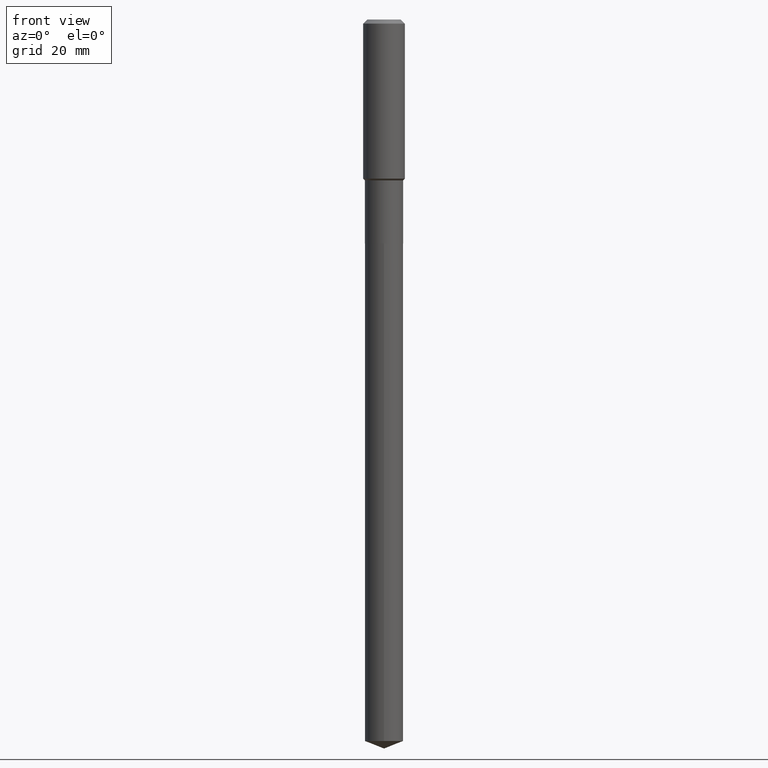
[diagram: clean part render]
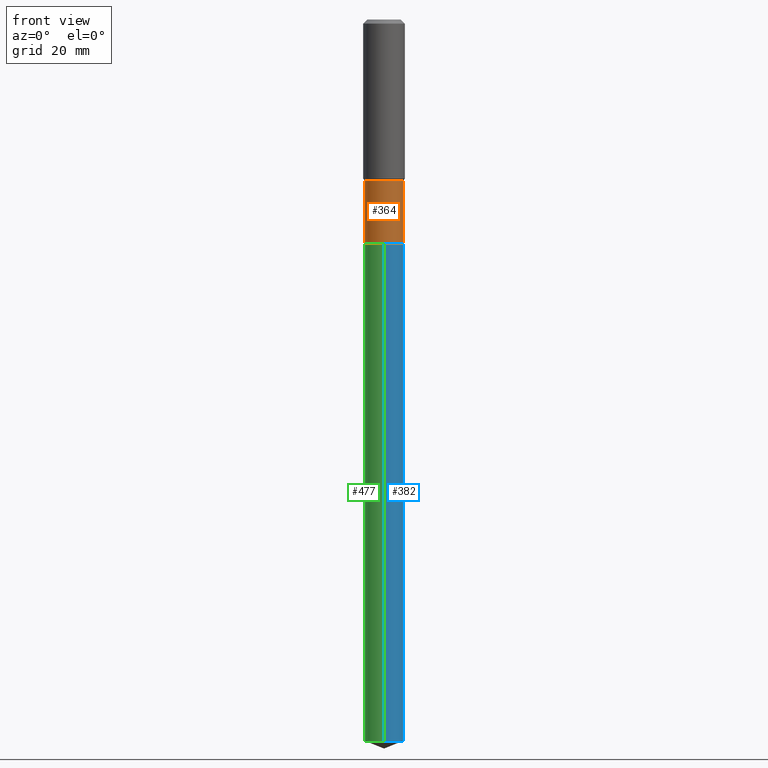
[diagram: same view with three faces highlighted in distinct colors, each labeled with its STEP entity id]
A machine part, front view with three faces highlighted in distinct colors.
Their STEP definitions:

[orange] entity #364 — the highlighted cylindrical surface (edge-blend (fillet) strip) has radius 5.5004 mm, axis along (-0, 0, 1).
#7 = EDGE_CURVE ( 'NONE', #210, #172, #140, .T. ) ;
#16 = CARTESIAN_POINT ( 'NONE',  ( 4.462980571287875634E-29, -6.371953443388742039E-15, -1.825000000000000400 ) ) ;
#40 = CARTESIAN_POINT ( 'NONE',  ( 0.2165500000000000203, -1.037772998344347638E-14, -2.539200000000000124 ) ) ;
#45 = CARTESIAN_POINT ( 'NONE',  ( 0.000000000000000000, 0.000000000000000000, 0.000000000000000000 ) ) ;
#64 = DIRECTION ( 'NONE',  ( -2.445468806185136597E-29, 3.491481338843145583E-15, 1.000000000000000000 ) ) ;
#70 = CARTESIAN_POINT ( 'NONE',  ( 0.2165499999999999647, -1.512160567852960823E-15, 1.055936080798609895E-29 ) ) ;
#106 = CIRCLE ( 'NONE', #388, 0.2165500000000000203 ) ;
#117 = CYLINDRICAL_SURFACE ( 'NONE', #244, 0.2165499999999999647 ) ;
#120 = DIRECTION ( 'NONE',  ( 1.000000000000000000, -6.982962677686266711E-15, 4.876176775795936353E-29 ) ) ;
#124 = CARTESIAN_POINT ( 'NONE',  ( -0.2165499999999999647, 1.538680294288496702E-15, -1.065195393794699783E-29 ) ) ;
#140 = LINE ( 'NONE', #70, #456 ) ;
#152 = DIRECTION ( 'NONE',  ( -2.445468806185136597E-29, 3.491481338843145583E-15, 1.000000000000000000 ) ) ;
#172 = VERTEX_POINT ( 'NONE', #193 ) ;
#186 = LINE ( 'NONE', #124, #265 ) ;
#191 = FACE_OUTER_BOUND ( 'NONE', #249, .T. ) ;
#193 = CARTESIAN_POINT ( 'NONE',  ( 0.2165499999999999092, -7.884114011241702862E-15, -1.825000000000000400 ) ) ;
#200 = ORIENTED_EDGE ( 'NONE', *, *, #453, .F. ) ;
#209 = EDGE_CURVE ( 'NONE', #320, #482, #186, .T. ) ;
#210 = VERTEX_POINT ( 'NONE', #40 ) ;
#212 = DIRECTION ( 'NONE',  ( -2.445468806185136877E-29, 3.491481338843145188E-15, 1.000000000000000000 ) ) ;
#241 = DIRECTION ( 'NONE',  ( 1.000000000000000000, -6.982962677686264344E-15, 0.000000000000000000 ) ) ;
#244 = AXIS2_PLACEMENT_3D ( 'NONE', #45, #152, #120 ) ;
#249 = EDGE_LOOP ( 'NONE', ( #317, #421, #352, #200 ) ) ;
#265 = VECTOR ( 'NONE', #460, 39.37007874015748143 ) ;
#271 = EDGE_CURVE ( 'NONE', #320, #210, #106, .T. ) ;
#312 = CIRCLE ( 'NONE', #455, 0.2165499999999999092 ) ;
#317 = ORIENTED_EDGE ( 'NONE', *, *, #209, .F. ) ;
#320 = VERTEX_POINT ( 'NONE', #383 ) ;
#325 = DIRECTION ( 'NONE',  ( -2.445468806185136597E-29, 3.491481338843145583E-15, 1.000000000000000000 ) ) ;
#351 = CARTESIAN_POINT ( 'NONE',  ( -0.2165499999999999092, -6.080081135201131701E-15, -1.825000000000000400 ) ) ;
#352 = ORIENTED_EDGE ( 'NONE', *, *, #7, .T. ) ;
#364 = ADVANCED_FACE ( 'NONE', ( #191 ), #117, .T. ) ;
#383 = CARTESIAN_POINT ( 'NONE',  ( -0.2165500000000000203, -6.080081135201130912E-15, -2.539200000000000124 ) ) ;
#388 = AXIS2_PLACEMENT_3D ( 'NONE', #420, #325, #241 ) ;
#420 = CARTESIAN_POINT ( 'NONE',  ( 6.209534392665298518E-29, -8.865569415590515556E-15, -2.539200000000000124 ) ) ;
#421 = ORIENTED_EDGE ( 'NONE', *, *, #271, .T. ) ;
#430 = DIRECTION ( 'NONE',  ( 1.000000000000000000, -6.982962677686267499E-15, 0.000000000000000000 ) ) ;
#453 = EDGE_CURVE ( 'NONE', #482, #172, #312, .T. ) ;
#455 = AXIS2_PLACEMENT_3D ( 'NONE', #16, #64, #430 ) ;
#456 = VECTOR ( 'NONE', #212, 39.37007874015748143 ) ;
#460 = DIRECTION ( 'NONE',  ( -2.445468806185136877E-29, 3.491481338843145188E-15, 1.000000000000000000 ) ) ;
#482 = VERTEX_POINT ( 'NONE', #351 ) ;

[blue] entity #382 — the highlighted cylindrical surface (edge-blend (fillet) strip) has radius 5.5004 mm, axis along (-0, 0, 1).
#14 = AXIS2_PLACEMENT_3D ( 'NONE', #22, #96, #348 ) ;
#22 = CARTESIAN_POINT ( 'NONE',  ( 6.210757127068392441E-29, -8.867315156259937848E-15, -2.539700000000000291 ) ) ;
#24 = CIRCLE ( 'NONE', #377, 0.2165500000000000203 ) ;
#25 = LINE ( 'NONE', #221, #349 ) ;
#34 = VECTOR ( 'NONE', #58, 39.37007874015748143 ) ;
#51 = EDGE_LOOP ( 'NONE', ( #326, #141, #102, #157 ) ) ;
#52 = CYLINDRICAL_SURFACE ( 'NONE', #180, 0.2165500000000000203 ) ;
#58 = DIRECTION ( 'NONE',  ( -2.445481490809803865E-29, 3.491463173738657521E-15, 1.000000000000000000 ) ) ;
#61 = CARTESIAN_POINT ( 'NONE',  ( -1.512160567852760255E-15, -0.2165500000000285252, -8.182698686505583296 ) ) ;
#80 = DIRECTION ( 'NONE',  ( -6.982962677686265133E-15, -1.000000000000000000, 5.046128826902356247E-15 ) ) ;
#96 = DIRECTION ( 'NONE',  ( -2.445481490809804145E-29, 3.491463173738657521E-15, 1.000000000000000000 ) ) ;
#102 = ORIENTED_EDGE ( 'NONE', *, *, #489, .F. ) ;
#141 = ORIENTED_EDGE ( 'NONE', *, *, #322, .T. ) ;
#156 = CIRCLE ( 'NONE', #14, 0.2165500000000000203 ) ;
#157 = ORIENTED_EDGE ( 'NONE', *, *, #331, .F. ) ;
#180 = AXIS2_PLACEMENT_3D ( 'NONE', #201, #447, #266 ) ;
#199 = LINE ( 'NONE', #346, #34 ) ;
#201 = CARTESIAN_POINT ( 'NONE',  ( 6.210757127068392441E-29, -8.867315156259937848E-15, -2.539700000000000291 ) ) ;
#221 = CARTESIAN_POINT ( 'NONE',  ( -1.512160567852898700E-15, -0.2165500000000088743, -2.539699999999999847 ) ) ;
#225 = EDGE_CURVE ( 'NONE', #470, #429, #24, .T. ) ;
#266 = DIRECTION ( 'NONE',  ( -6.982962677686265133E-15, -1.000000000000000000, 2.523064413451178124E-15 ) ) ;
#319 = CARTESIAN_POINT ( 'NONE',  ( 1.538680294288697861E-15, 0.2165499999999911385, -2.539700000000000735 ) ) ;
#322 = EDGE_CURVE ( 'NONE', #429, #323, #199, .T. ) ;
#323 = VERTEX_POINT ( 'NONE', #319 ) ;
#324 = VERTEX_POINT ( 'NONE', #396 ) ;
#326 = ORIENTED_EDGE ( 'NONE', *, *, #225, .T. ) ;
#331 = EDGE_CURVE ( 'NONE', #470, #324, #25, .T. ) ;
#346 = CARTESIAN_POINT ( 'NONE',  ( 1.538680294288558825E-15, 0.2165499999999911385, -2.539700000000000735 ) ) ;
#348 = DIRECTION ( 'NONE',  ( -6.982962677686265133E-15, -1.000000000000000000, 2.523064413451178124E-15 ) ) ;
#349 = VECTOR ( 'NONE', #362, 39.37007874015748143 ) ;
#362 = DIRECTION ( 'NONE',  ( -2.445481490809803865E-29, 3.491463173738657521E-15, 1.000000000000000000 ) ) ;
#373 = DIRECTION ( 'NONE',  ( -2.445481490809804145E-29, 3.491463173738657521E-15, 1.000000000000000000 ) ) ;
#377 = AXIS2_PLACEMENT_3D ( 'NONE', #412, #373, #80 ) ;
#382 = ADVANCED_FACE ( 'NONE', ( #385 ), #52, .T. ) ;
#385 = FACE_OUTER_BOUND ( 'NONE', #51, .T. ) ;
#396 = CARTESIAN_POINT ( 'NONE',  ( -1.512160567852898700E-15, -0.2165500000000088743, -2.539699999999999847 ) ) ;
#412 = CARTESIAN_POINT ( 'NONE',  ( 2.001060596758183764E-28, -2.856963725964980633E-14, -8.182698686505585073 ) ) ;
#429 = VERTEX_POINT ( 'NONE', #480 ) ;
#447 = DIRECTION ( 'NONE',  ( -2.445481490809804145E-29, 3.491463173738657521E-15, 1.000000000000000000 ) ) ;
#470 = VERTEX_POINT ( 'NONE', #61 ) ;
#480 = CARTESIAN_POINT ( 'NONE',  ( 1.538680294288696678E-15, 0.2165499999999713487, -8.182698686505586849 ) ) ;
#489 = EDGE_CURVE ( 'NONE', #324, #323, #156, .T. ) ;

[green] entity #477 — the highlighted cylindrical surface (edge-blend (fillet) strip) has radius 5.5004 mm, axis along (-0, 0, 1).
#8 = EDGE_LOOP ( 'NONE', ( #131, #297, #409, #239 ) ) ;
#20 = FACE_OUTER_BOUND ( 'NONE', #8, .T. ) ;
#25 = LINE ( 'NONE', #221, #349 ) ;
#34 = VECTOR ( 'NONE', #58, 39.37007874015748143 ) ;
#58 = DIRECTION ( 'NONE',  ( -2.445481490809803865E-29, 3.491463173738657521E-15, 1.000000000000000000 ) ) ;
#61 = CARTESIAN_POINT ( 'NONE',  ( -1.512160567852760255E-15, -0.2165500000000285252, -8.182698686505583296 ) ) ;
#98 = CIRCLE ( 'NONE', #205, 0.2165500000000000203 ) ;
#126 = DIRECTION ( 'NONE',  ( -6.982962677686265133E-15, -1.000000000000000000, 2.523064413451178124E-15 ) ) ;
#130 = DIRECTION ( 'NONE',  ( -2.445481490809804145E-29, 3.491463173738657521E-15, 1.000000000000000000 ) ) ;
#131 = ORIENTED_EDGE ( 'NONE', *, *, #322, .F. ) ;
#162 = CARTESIAN_POINT ( 'NONE',  ( 2.001060596758183764E-28, -2.856963725964980633E-14, -8.182698686505585073 ) ) ;
#169 = DIRECTION ( 'NONE',  ( -6.982962677686265133E-15, -1.000000000000000000, 2.523064413451178124E-15 ) ) ;
#199 = LINE ( 'NONE', #346, #34 ) ;
#202 = AXIS2_PLACEMENT_3D ( 'NONE', #435, #291, #169 ) ;
#205 = AXIS2_PLACEMENT_3D ( 'NONE', #162, #130, #316 ) ;
#221 = CARTESIAN_POINT ( 'NONE',  ( -1.512160567852898700E-15, -0.2165500000000088743, -2.539699999999999847 ) ) ;
#223 = CIRCLE ( 'NONE', #294, 0.2165500000000000203 ) ;
#239 = ORIENTED_EDGE ( 'NONE', *, *, #310, .F. ) ;
#291 = DIRECTION ( 'NONE',  ( -2.445481490809804145E-29, 3.491463173738657521E-15, 1.000000000000000000 ) ) ;
#294 = AXIS2_PLACEMENT_3D ( 'NONE', #390, #463, #126 ) ;
#297 = ORIENTED_EDGE ( 'NONE', *, *, #307, .T. ) ;
#307 = EDGE_CURVE ( 'NONE', #429, #470, #98, .T. ) ;
#310 = EDGE_CURVE ( 'NONE', #323, #324, #223, .T. ) ;
#316 = DIRECTION ( 'NONE',  ( -6.982962677686265133E-15, -1.000000000000000000, 5.046128826902356247E-15 ) ) ;
#319 = CARTESIAN_POINT ( 'NONE',  ( 1.538680294288697861E-15, 0.2165499999999911385, -2.539700000000000735 ) ) ;
#322 = EDGE_CURVE ( 'NONE', #429, #323, #199, .T. ) ;
#323 = VERTEX_POINT ( 'NONE', #319 ) ;
#324 = VERTEX_POINT ( 'NONE', #396 ) ;
#331 = EDGE_CURVE ( 'NONE', #470, #324, #25, .T. ) ;
#346 = CARTESIAN_POINT ( 'NONE',  ( 1.538680294288558825E-15, 0.2165499999999911385, -2.539700000000000735 ) ) ;
#349 = VECTOR ( 'NONE', #362, 39.37007874015748143 ) ;
#362 = DIRECTION ( 'NONE',  ( -2.445481490809803865E-29, 3.491463173738657521E-15, 1.000000000000000000 ) ) ;
#390 = CARTESIAN_POINT ( 'NONE',  ( 6.210757127068392441E-29, -8.867315156259937848E-15, -2.539700000000000291 ) ) ;
#396 = CARTESIAN_POINT ( 'NONE',  ( -1.512160567852898700E-15, -0.2165500000000088743, -2.539699999999999847 ) ) ;
#409 = ORIENTED_EDGE ( 'NONE', *, *, #331, .T. ) ;
#429 = VERTEX_POINT ( 'NONE', #480 ) ;
#433 = CYLINDRICAL_SURFACE ( 'NONE', #202, 0.2165500000000000203 ) ;
#435 = CARTESIAN_POINT ( 'NONE',  ( 6.210757127068392441E-29, -8.867315156259937848E-15, -2.539700000000000291 ) ) ;
#463 = DIRECTION ( 'NONE',  ( -2.445481490809804145E-29, 3.491463173738657521E-15, 1.000000000000000000 ) ) ;
#470 = VERTEX_POINT ( 'NONE', #61 ) ;
#477 = ADVANCED_FACE ( 'NONE', ( #20 ), #433, .T. ) ;
#480 = CARTESIAN_POINT ( 'NONE',  ( 1.538680294288696678E-15, 0.2165499999999713487, -8.182698686505586849 ) ) ;